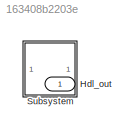
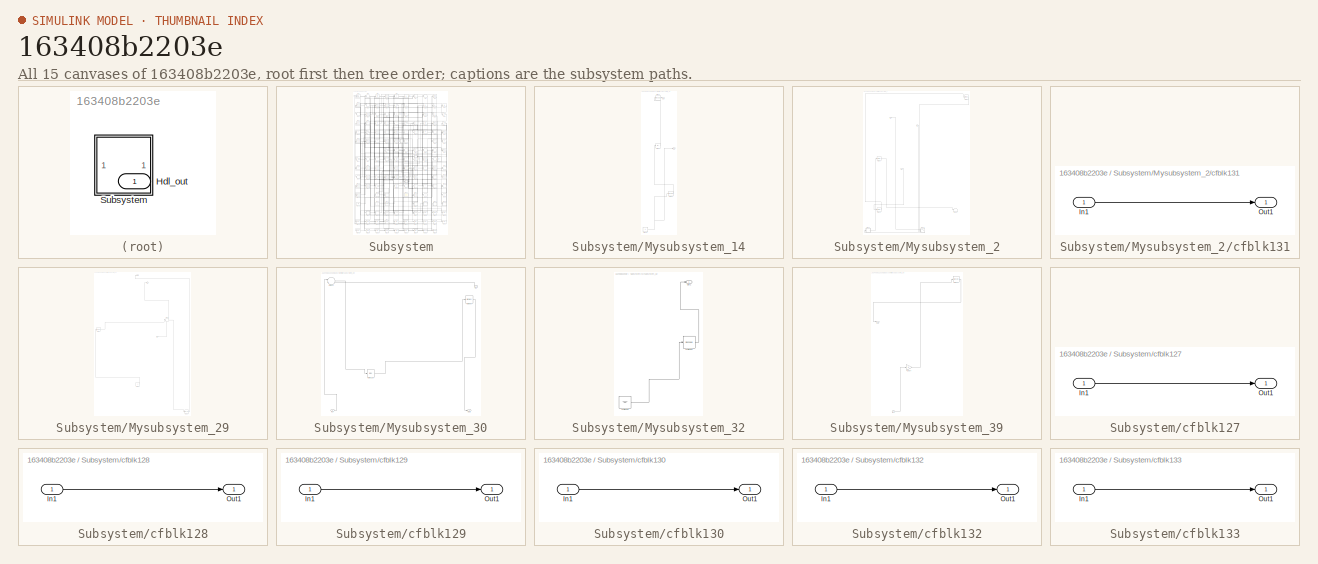
[diagram: thumbnail index - all 15 canvases of the model, root first then tree order]
MODEL slx_163408b2203e
KIND model
CONFIG AbsTol = auto
CONFIG EnableMultiTasking = off
CONFIG FixedStep = auto
CONFIG MaxStep = auto
CONFIG MinStep = auto
CONFIG RelTol = 1e-3
CONFIG SampleTimeConstraint = Unconstrained
CONFIG SolverName = VariableStepAuto
CONFIG StartTime = 0.0
CONFIG StopTime = 10.0
BLOCK [Outport] Hdl_out
  OutDataTypeStr = uint8
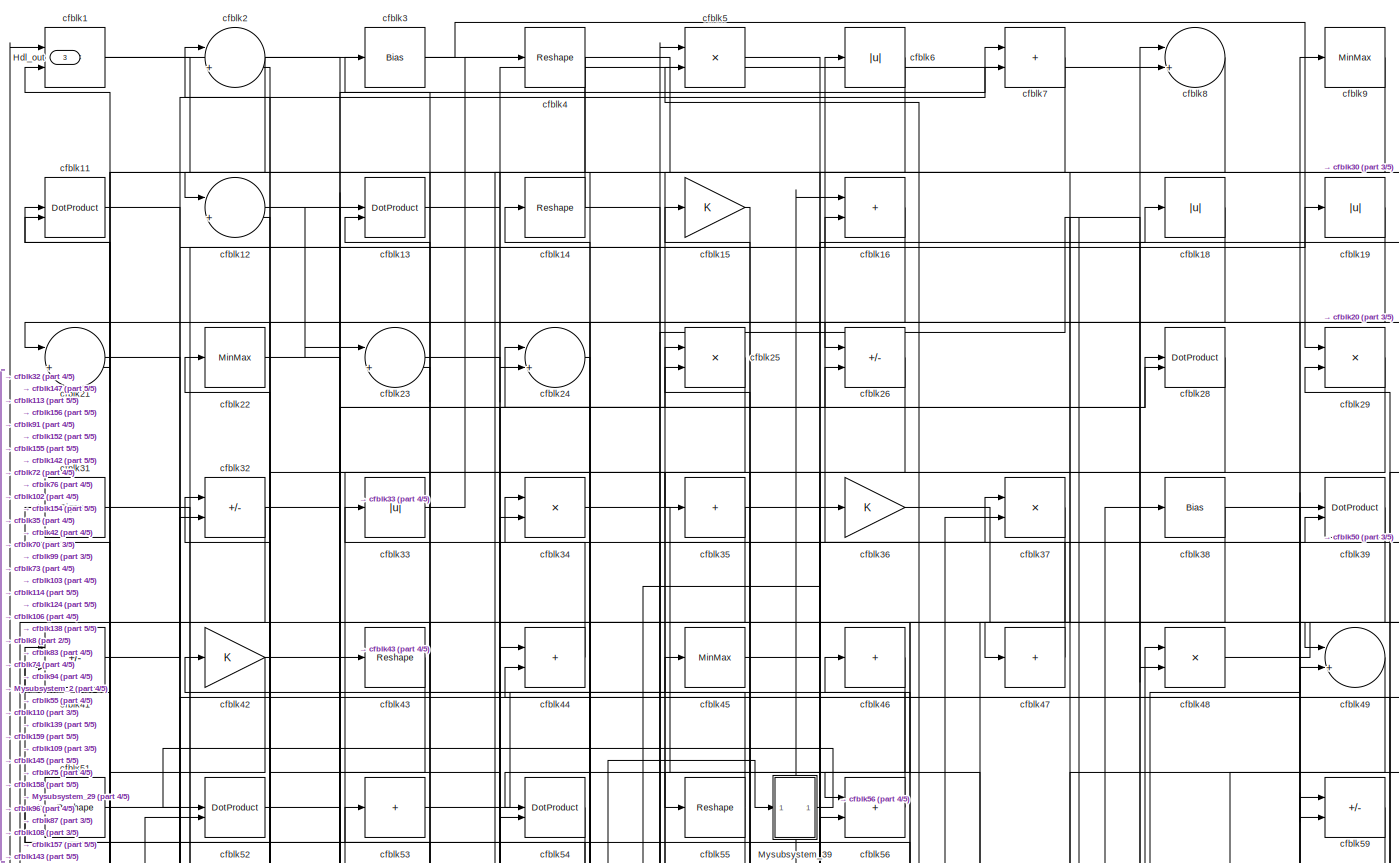
[diagram: Subsystem - part 1/5, full width, top band]
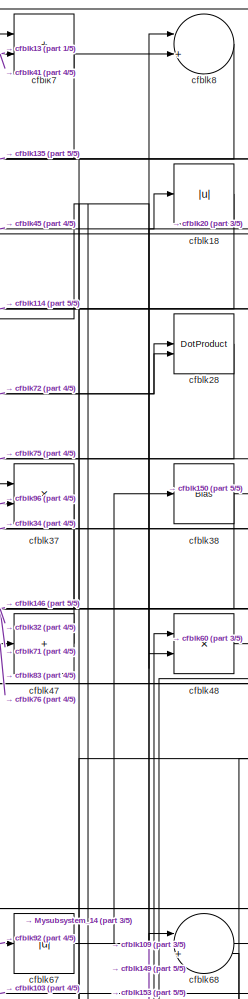
[diagram: Subsystem - part 2/5, top right region]
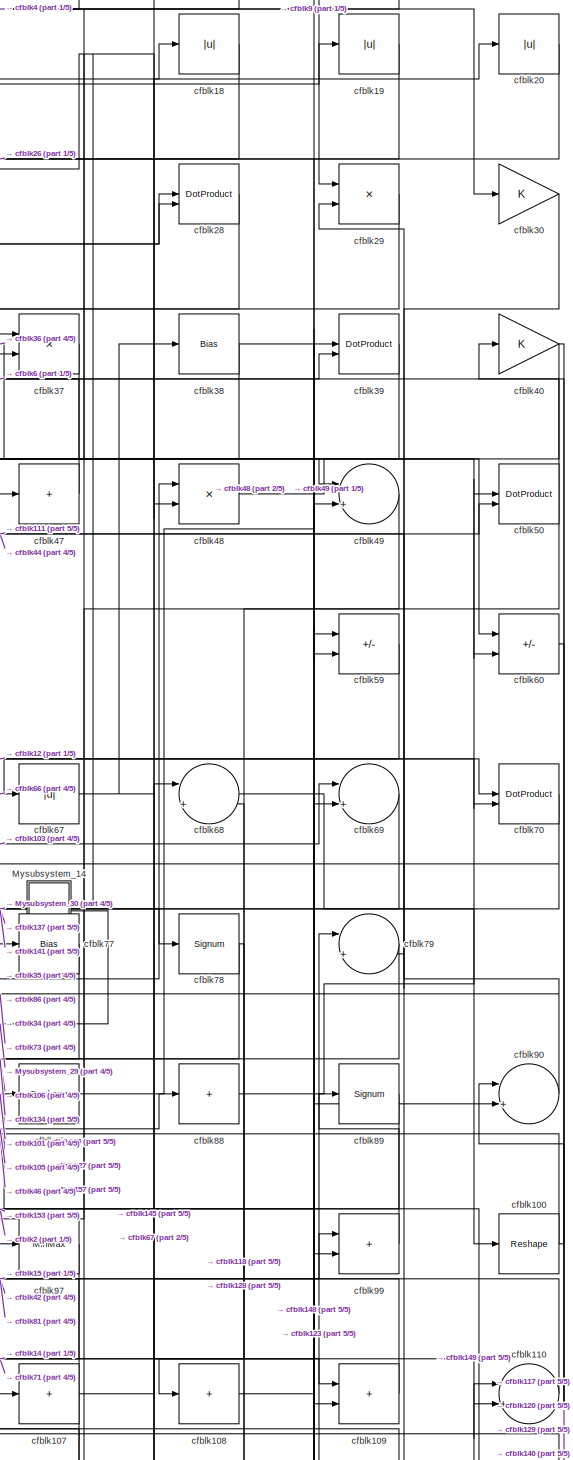
[diagram: Subsystem - part 3/5, middle right region]
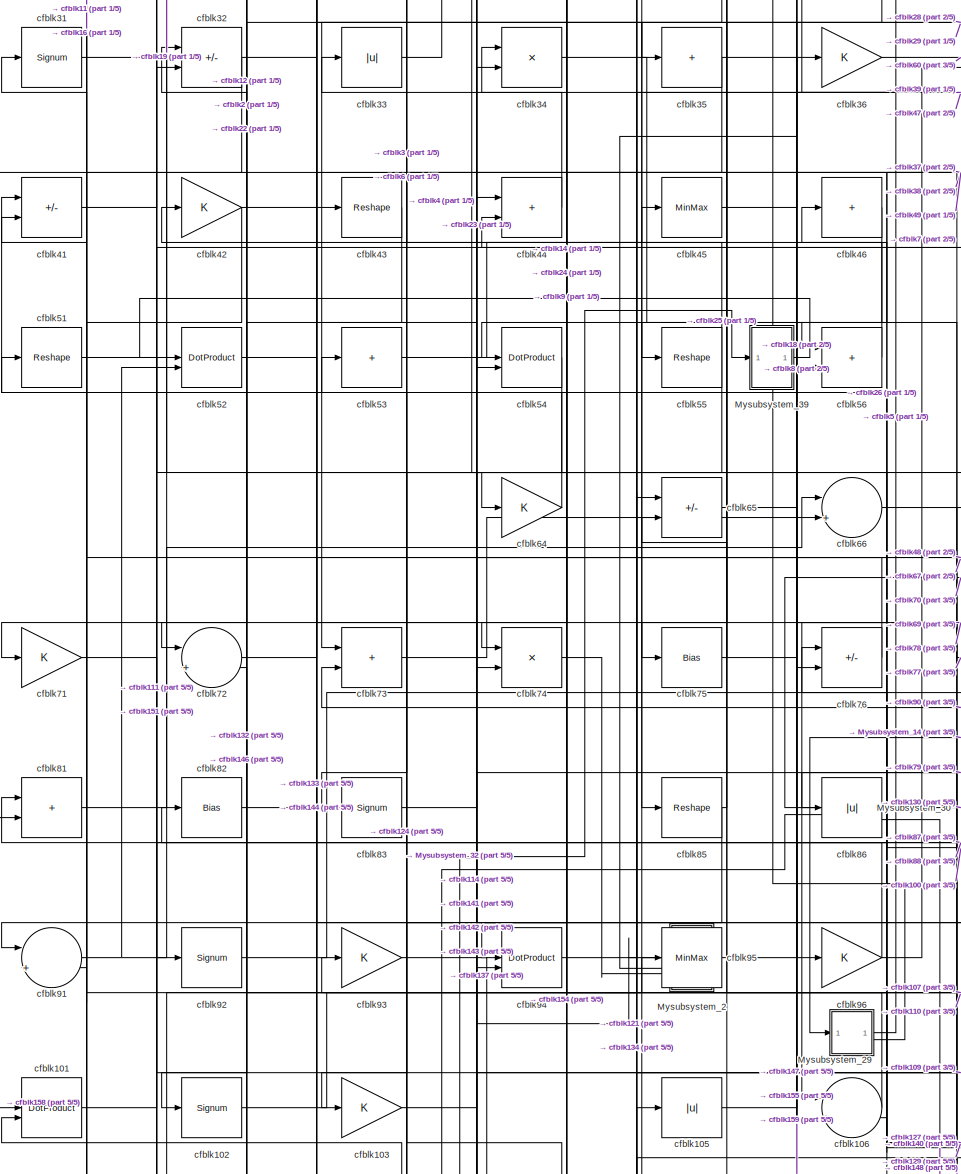
[diagram: Subsystem - part 4/5, middle left region]
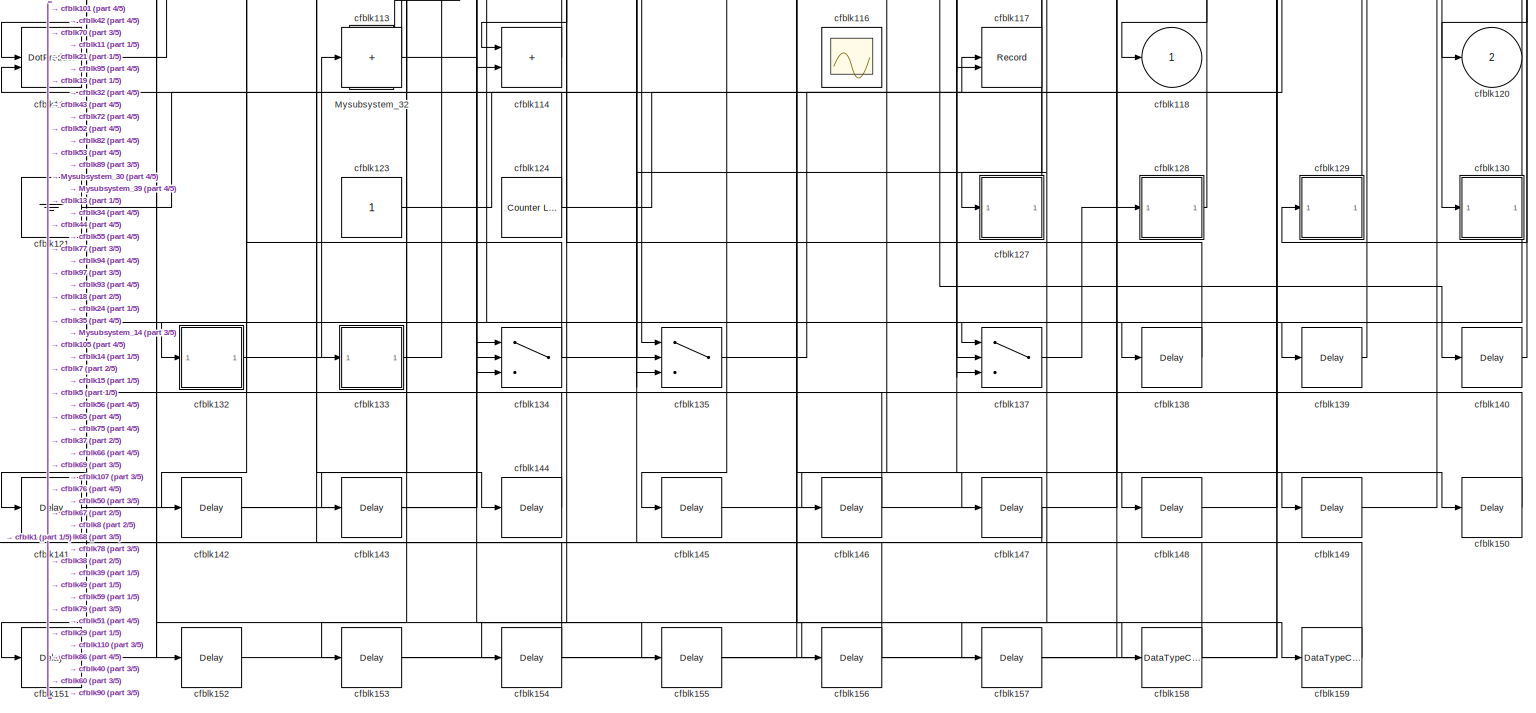
[diagram: Subsystem - part 5/5, full width, bottom band]
BLOCK [SubSystem] Subsystem
BLOCK [Outport] Subsystem/Hdl_out
  OutDataTypeStr = uint8
  Port = 3
BLOCK [SubSystem] Subsystem/Mysubsystem_14
  RTWFcnName = Mysubsystem_14
  RTWFcnNameOpts = User specified
  RTWFileNameOpts = Use function name
  RTWSystemCode = Reusable function
  TreatAsAtomicUnit = on
BLOCK [Outport] Subsystem/Mysubsystem_14/Out1
BLOCK [Outport] Subsystem/Mysubsystem_14/Out2
  Port = 2
BLOCK [Constant] Subsystem/Mysubsystem_14/cfblk126
  SampleTime = -1
BLOCK [Reshape] Subsystem/Mysubsystem_14/cfblk17
BLOCK [Abs] Subsystem/Mysubsystem_14/cfblk57
  SaturateOnIntegerOverflow = off
BLOCK [Reshape] Subsystem/Mysubsystem_14/cfblk98
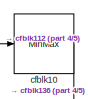
[diagram: Subsystem/Mysubsystem_2 - part 1/5, top right region]
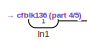
[diagram: Subsystem/Mysubsystem_2 - part 2/5, top left region]
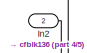
[diagram: Subsystem/Mysubsystem_2 - part 3/5, top center region]
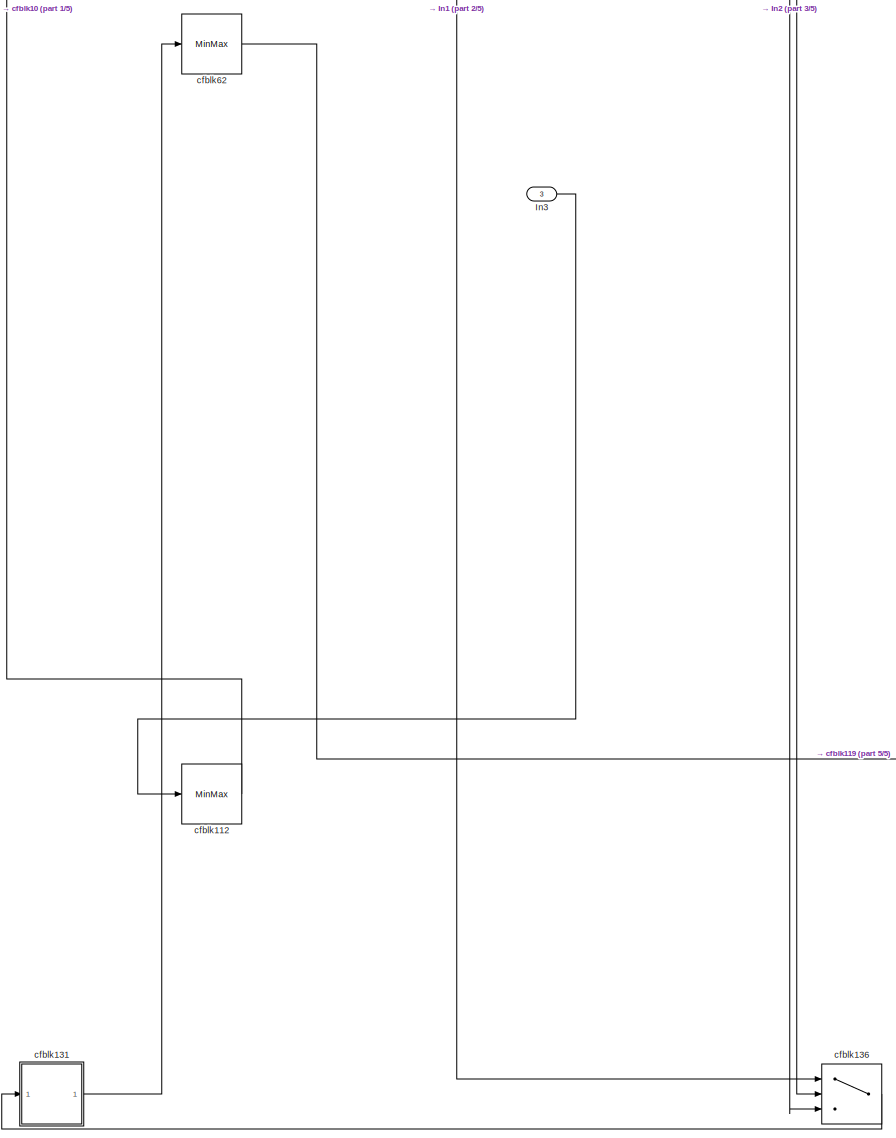
[diagram: Subsystem/Mysubsystem_2 - part 4/5, bottom left region]
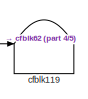
[diagram: Subsystem/Mysubsystem_2 - part 5/5, bottom right region]
BLOCK [SubSystem] Subsystem/Mysubsystem_2
  RTWFcnName = Mysubsystem_2
  RTWFcnNameOpts = User specified
  RTWFileNameOpts = Use function name
  RTWSystemCode = Reusable function
  TreatAsAtomicUnit = on
BLOCK [Inport] Subsystem/Mysubsystem_2/In1
BLOCK [Inport] Subsystem/Mysubsystem_2/In2
  Port = 2
BLOCK [Inport] Subsystem/Mysubsystem_2/In3
  Port = 3
BLOCK [MinMax] Subsystem/Mysubsystem_2/cfblk10
BLOCK [MinMax] Subsystem/Mysubsystem_2/cfblk112
BLOCK [Terminator] Subsystem/Mysubsystem_2/cfblk119
BLOCK [SubSystem] Subsystem/Mysubsystem_2/cfblk131
  LibrarySourceBlock = hdlsllib/Ports &\nSubsystems/Subsystem
BLOCK [Inport] Subsystem/Mysubsystem_2/cfblk131/In1
BLOCK [Outport] Subsystem/Mysubsystem_2/cfblk131/Out1
BLOCK [Switch] Subsystem/Mysubsystem_2/cfblk136
  InputSameDT = off
  SaturateOnIntegerOverflow = off
BLOCK [MinMax] Subsystem/Mysubsystem_2/cfblk62
BLOCK [SubSystem] Subsystem/Mysubsystem_29
  RTWFcnName = Mysubsystem_29
  RTWFcnNameOpts = User specified
  RTWFileNameOpts = Use function name
  RTWSystemCode = Reusable function
  TreatAsAtomicUnit = on
BLOCK [Inport] Subsystem/Mysubsystem_29/In1
BLOCK [Outport] Subsystem/Mysubsystem_29/Out1
BLOCK [Outport] Subsystem/Mysubsystem_29/Out2
  Port = 2
BLOCK [Constant] Subsystem/Mysubsystem_29/cfblk125
  SampleTime = -1
BLOCK [DataTypeConversion] Subsystem/Mysubsystem_29/cfblk160
  OutDataTypeStr = uint8
  RndMeth = Floor
  SaturateOnIntegerOverflow = off
BLOCK [Sum] Subsystem/Mysubsystem_29/cfblk58
  Inputs = |++
BLOCK [Signum] Subsystem/Mysubsystem_29/cfblk61
BLOCK [SubSystem] Subsystem/Mysubsystem_30
  RTWFcnName = Mysubsystem_30
  RTWFcnNameOpts = User specified
  RTWFileNameOpts = Use function name
  RTWSystemCode = Reusable function
  TreatAsAtomicUnit = on
BLOCK [Inport] Subsystem/Mysubsystem_30/In1
BLOCK [Inport] Subsystem/Mysubsystem_30/In2
  Port = 2
BLOCK [Outport] Subsystem/Mysubsystem_30/Out1
BLOCK [Bias] Subsystem/Mysubsystem_30/cfblk115
  Bias = 0.0
  SaturateOnIntegerOverflow = off
BLOCK [Sum] Subsystem/Mysubsystem_30/cfblk63
  Inputs = |++
BLOCK [MinMax] Subsystem/Mysubsystem_30/cfblk80
BLOCK [SubSystem] Subsystem/Mysubsystem_32
  RTWFcnName = Mysubsystem_32
  RTWFcnNameOpts = User specified
  RTWFileNameOpts = Use function name
  RTWSystemCode = Reusable function
  TreatAsAtomicUnit = on
BLOCK [Outport] Subsystem/Mysubsystem_32/Out1
BLOCK [Reshape] Subsystem/Mysubsystem_32/cfblk104
BLOCK [Ground] Subsystem/Mysubsystem_32/cfblk122
BLOCK [SubSystem] Subsystem/Mysubsystem_39
  RTWFcnName = Mysubsystem_39
  RTWFcnNameOpts = User specified
  RTWFileNameOpts = Use function name
  RTWSystemCode = Reusable function
  TreatAsAtomicUnit = on
BLOCK [Inport] Subsystem/Mysubsystem_39/In1
BLOCK [Outport] Subsystem/Mysubsystem_39/Out1
BLOCK [Signum] Subsystem/Mysubsystem_39/cfblk27
BLOCK [Gain] Subsystem/Mysubsystem_39/cfblk84
BLOCK [RelationalOperator] Subsystem/cfblk1
  InputSameDT = off
  Operator = <=
  OutDataTypeStr = boolean
BLOCK [Reshape] Subsystem/cfblk100
BLOCK [DotProduct] Subsystem/cfblk101
  OutDataTypeStr = uint8
BLOCK [Signum] Subsystem/cfblk102
BLOCK [Gain] Subsystem/cfblk103
  OutDataTypeStr = uint8
BLOCK [Abs] Subsystem/cfblk105
  OutDataTypeStr = uint8
  SaturateOnIntegerOverflow = off
BLOCK [Sum] Subsystem/cfblk106
  Inputs = |++
  OutDataTypeStr = uint8
BLOCK [Sum] Subsystem/cfblk107
  IconShape = rectangular
  Inputs = +
  OutDataTypeStr = uint8
BLOCK [Sum] Subsystem/cfblk108
  IconShape = rectangular
  Inputs = +
  OutDataTypeStr = uint8
BLOCK [Sum] Subsystem/cfblk109
  IconShape = rectangular
  OutDataTypeStr = uint8
BLOCK [DotProduct] Subsystem/cfblk11
  OutDataTypeStr = uint8
BLOCK [Sum] Subsystem/cfblk110
  Inputs = |++
  OutDataTypeStr = uint8
BLOCK [DotProduct] Subsystem/cfblk111
  OutDataTypeStr = uint8
BLOCK [Sum] Subsystem/cfblk113
  IconShape = rectangular
  Inputs = +
  OutDataTypeStr = uint8
BLOCK [Sum] Subsystem/cfblk114
  IconShape = rectangular
  OutDataTypeStr = uint8
BLOCK [Scope] Subsystem/cfblk116
  Floating = on
  NumInputPorts = 1
  ScopeSpecificationString = Simulink.scopes.TimeScopeBlockCfg('CurrentConfiguration', extmgr.ConfigurationSet(extmgr.Configuration('Core','General UI',true,'FigureColor',[0.156862745098039 0.156862745098039 0.156862745098039]),extmgr.Configuration('Core','Source UI',true),extmgr.Configuration('Sources','WiredSimulink',true,'DataLoggingSaveFormat','StructureWithTime','DataLoggingLimitDataPoints',true,'DataLoggingDecimation','...<+2674ch>
BLOCK [Record] Subsystem/cfblk117
  CompatibilityTag = XY
  FileSettingsInternal = {"entries":[{"content":{"excelSettings":{"content":{},"type":"Streamout.ExcelSettings"}},"type":"Streamout.FileSettingStorage","uuid":""}],"packageUris":["http:\/\/schema.mathworks.com\/mf0\/streamout_blocks\/R2020a"],"version":"1.0"}
  Layout = [1 1]
  SignalsInternal = {"entries":[{"content":{"signals":[{"content":{"blockPath":[],"dimensions":[1],"domain":"","lineColor":"#a2142f","plots":[1],"port":1,"signalID":53658,"signalName":"cfblk135"},"type":"RecordBlkView.Signal","uuid":""},{"content":{"blockPath":[],"dimensions":[1],"domain":"","lineColor":"#139fff","plots":[1],"port":2,"signalID":53661,"signalName":"cfblk40"},"type":"RecordBlkView.Signal","uuid":""}]},...<+143ch>
  VisualizationBindings = {"xyplotplugin":{"info":[{"series":[{"bindingParametersList":[{"parameter":"X-Axis","signalID":53658,"signalName":"cfblk135"},{"parameter":"Y-Axis","signalID":53661,"signalName":"cfblk40"}],"seriesID":5701}],"subplotID":1}]}}
  st = -1
BLOCK [Outport] Subsystem/cfblk118
  OutDataTypeStr = uint8
  VectorParamsAs1DForOutWhenUnconnected = off
BLOCK [Sum] Subsystem/cfblk12
  Inputs = |++
  OutDataTypeStr = uint8
BLOCK [Outport] Subsystem/cfblk120
  OutDataTypeStr = uint8
  Port = 2
  VectorParamsAs1DForOutWhenUnconnected = off
BLOCK [Ground] Subsystem/cfblk121
BLOCK [Constant] Subsystem/cfblk123
  OutDataTypeStr = uint8
  SampleTime = -1
BLOCK [Reference] Subsystem/cfblk124  REF=hdlsllib/Sources/Counter
Limited
  SourceBlock = hdlsllib/Sources/Counter\nLimited
  SourceType = Counter Limited
BLOCK [SubSystem] Subsystem/cfblk127
  LibrarySourceBlock = hdlsllib/Ports &\nSubsystems/Subsystem
BLOCK [Inport] Subsystem/cfblk127/In1
BLOCK [Outport] Subsystem/cfblk127/Out1
BLOCK [SubSystem] Subsystem/cfblk128
  LibrarySourceBlock = hdlsllib/Ports &\nSubsystems/Subsystem
BLOCK [Inport] Subsystem/cfblk128/In1
BLOCK [Outport] Subsystem/cfblk128/Out1
BLOCK [SubSystem] Subsystem/cfblk129
  LibrarySourceBlock = hdlsllib/Ports &\nSubsystems/Subsystem
BLOCK [Inport] Subsystem/cfblk129/In1
BLOCK [Outport] Subsystem/cfblk129/Out1
BLOCK [DotProduct] Subsystem/cfblk13
  OutDataTypeStr = uint8
BLOCK [SubSystem] Subsystem/cfblk130
  LibrarySourceBlock = hdlsllib/Ports &\nSubsystems/Subsystem
BLOCK [Inport] Subsystem/cfblk130/In1
BLOCK [Outport] Subsystem/cfblk130/Out1
BLOCK [SubSystem] Subsystem/cfblk132
  LibrarySourceBlock = hdlsllib/Ports &\nSubsystems/Subsystem
BLOCK [Inport] Subsystem/cfblk132/In1
BLOCK [Outport] Subsystem/cfblk132/Out1
BLOCK [SubSystem] Subsystem/cfblk133
  LibrarySourceBlock = hdlsllib/Ports &\nSubsystems/Subsystem
BLOCK [Inport] Subsystem/cfblk133/In1
BLOCK [Outport] Subsystem/cfblk133/Out1
BLOCK [Switch] Subsystem/cfblk134
  InputSameDT = off
  OutDataTypeStr = uint8
  SaturateOnIntegerOverflow = off
BLOCK [Switch] Subsystem/cfblk135
  InputSameDT = off
  OutDataTypeStr = uint8
  SaturateOnIntegerOverflow = off
BLOCK [Switch] Subsystem/cfblk137
  InputSameDT = off
  OutDataTypeStr = uint8
  SaturateOnIntegerOverflow = off
BLOCK [Delay] Subsystem/cfblk138
  InputPortMap = u0
  SampleTime = 1
BLOCK [Delay] Subsystem/cfblk139
  InputPortMap = u0
  SampleTime = 1
BLOCK [Reshape] Subsystem/cfblk14
BLOCK [Delay] Subsystem/cfblk140
  InputPortMap = u0
  SampleTime = 1
BLOCK [Delay] Subsystem/cfblk141
  InputPortMap = u0
  SampleTime = 1
BLOCK [Delay] Subsystem/cfblk142
  InputPortMap = u0
  SampleTime = 1
BLOCK [Delay] Subsystem/cfblk143
  InputPortMap = u0
  SampleTime = 1
BLOCK [Delay] Subsystem/cfblk144
  InputPortMap = u0
  SampleTime = 1
BLOCK [Delay] Subsystem/cfblk145
  InputPortMap = u0
  SampleTime = 1
BLOCK [Delay] Subsystem/cfblk146
  InputPortMap = u0
  SampleTime = 1
BLOCK [Delay] Subsystem/cfblk147
  InputPortMap = u0
  SampleTime = 1
BLOCK [Delay] Subsystem/cfblk148
  InputPortMap = u0
  SampleTime = 1
BLOCK [Delay] Subsystem/cfblk149
  InputPortMap = u0
  SampleTime = 1
BLOCK [Gain] Subsystem/cfblk15
  OutDataTypeStr = uint8
BLOCK [Delay] Subsystem/cfblk150
  InputPortMap = u0
  SampleTime = 1
BLOCK [Delay] Subsystem/cfblk151
  InputPortMap = u0
  SampleTime = 1
BLOCK [Delay] Subsystem/cfblk152
  InputPortMap = u0
  SampleTime = 1
BLOCK [Delay] Subsystem/cfblk153
  InputPortMap = u0
  SampleTime = 1
BLOCK [Delay] Subsystem/cfblk154
  InputPortMap = u0
  SampleTime = 1
BLOCK [Delay] Subsystem/cfblk155
  InputPortMap = u0
  SampleTime = 1
BLOCK [Delay] Subsystem/cfblk156
  InputPortMap = u0
  SampleTime = 1
BLOCK [Delay] Subsystem/cfblk157
  InputPortMap = u0
  SampleTime = 1
BLOCK [DataTypeConversion] Subsystem/cfblk158
  OutDataTypeStr = uint8
  RndMeth = Floor
  SaturateOnIntegerOverflow = off
BLOCK [DataTypeConversion] Subsystem/cfblk159
  OutDataTypeStr = uint8
  RndMeth = Floor
  SaturateOnIntegerOverflow = off
BLOCK [Sum] Subsystem/cfblk16
  IconShape = rectangular
  OutDataTypeStr = uint8
BLOCK [Abs] Subsystem/cfblk18
  OutDataTypeStr = uint8
  SaturateOnIntegerOverflow = off
BLOCK [Abs] Subsystem/cfblk19
  OutDataTypeStr = uint8
  SaturateOnIntegerOverflow = off
BLOCK [Sum] Subsystem/cfblk2
  Inputs = |++
  OutDataTypeStr = uint8
BLOCK [Abs] Subsystem/cfblk20
  OutDataTypeStr = uint8
  SaturateOnIntegerOverflow = off
BLOCK [Sum] Subsystem/cfblk21
  Inputs = |++
  OutDataTypeStr = uint8
BLOCK [MinMax] Subsystem/cfblk22
  OutDataTypeStr = uint8
BLOCK [Sum] Subsystem/cfblk23
  Inputs = |++
  OutDataTypeStr = uint8
BLOCK [Sum] Subsystem/cfblk24
  Inputs = |++
  OutDataTypeStr = uint8
BLOCK [Product] Subsystem/cfblk25
  Inputs = */
  OutDataTypeStr = uint8
  RndMeth = Zero
  SaturateOnIntegerOverflow = on
BLOCK [Sum] Subsystem/cfblk26
  IconShape = rectangular
  Inputs = +-
  OutDataTypeStr = uint8
BLOCK [DotProduct] Subsystem/cfblk28
  OutDataTypeStr = uint8
BLOCK [Product] Subsystem/cfblk29
  Inputs = */
  OutDataTypeStr = uint8
  RndMeth = Zero
  SaturateOnIntegerOverflow = on
BLOCK [Bias] Subsystem/cfblk3
  Bias = 0.0
  SaturateOnIntegerOverflow = off
BLOCK [Gain] Subsystem/cfblk30
  OutDataTypeStr = uint8
BLOCK [Signum] Subsystem/cfblk31
BLOCK [Sum] Subsystem/cfblk32
  IconShape = rectangular
  Inputs = +-
  OutDataTypeStr = uint8
BLOCK [Abs] Subsystem/cfblk33
  OutDataTypeStr = uint8
  SaturateOnIntegerOverflow = off
BLOCK [Product] Subsystem/cfblk34
  Inputs = */
  OutDataTypeStr = uint8
  RndMeth = Zero
  SaturateOnIntegerOverflow = on
BLOCK [Sum] Subsystem/cfblk35
  IconShape = rectangular
  Inputs = +
  OutDataTypeStr = uint8
BLOCK [Gain] Subsystem/cfblk36
  OutDataTypeStr = uint8
BLOCK [Product] Subsystem/cfblk37
  Inputs = */
  OutDataTypeStr = uint8
  RndMeth = Zero
  SaturateOnIntegerOverflow = on
BLOCK [Bias] Subsystem/cfblk38
  Bias = 0.0
  SaturateOnIntegerOverflow = off
BLOCK [DotProduct] Subsystem/cfblk39
  OutDataTypeStr = uint8
BLOCK [Reshape] Subsystem/cfblk4
BLOCK [Gain] Subsystem/cfblk40
  OutDataTypeStr = uint8
BLOCK [Sum] Subsystem/cfblk41
  IconShape = rectangular
  Inputs = +-
  OutDataTypeStr = uint8
BLOCK [Gain] Subsystem/cfblk42
  OutDataTypeStr = uint8
BLOCK [Reshape] Subsystem/cfblk43
BLOCK [Sum] Subsystem/cfblk44
  IconShape = rectangular
  OutDataTypeStr = uint8
BLOCK [MinMax] Subsystem/cfblk45
  OutDataTypeStr = uint8
BLOCK [Sum] Subsystem/cfblk46
  IconShape = rectangular
  Inputs = +
  OutDataTypeStr = uint8
BLOCK [Sum] Subsystem/cfblk47
  IconShape = rectangular
  Inputs = +
  OutDataTypeStr = uint8
BLOCK [Product] Subsystem/cfblk48
  Inputs = */
  OutDataTypeStr = uint8
  RndMeth = Zero
  SaturateOnIntegerOverflow = on
BLOCK [Sum] Subsystem/cfblk49
  Inputs = |++
  OutDataTypeStr = uint8
BLOCK [Product] Subsystem/cfblk5
  Inputs = */
  OutDataTypeStr = uint8
  RndMeth = Zero
  SaturateOnIntegerOverflow = on
BLOCK [DotProduct] Subsystem/cfblk50
  OutDataTypeStr = uint8
BLOCK [Reshape] Subsystem/cfblk51
BLOCK [DotProduct] Subsystem/cfblk52
  OutDataTypeStr = uint8
BLOCK [Sum] Subsystem/cfblk53
  IconShape = rectangular
  Inputs = +
  OutDataTypeStr = uint8
BLOCK [DotProduct] Subsystem/cfblk54
  OutDataTypeStr = uint8
BLOCK [Reshape] Subsystem/cfblk55
BLOCK [Sum] Subsystem/cfblk56
  IconShape = rectangular
  OutDataTypeStr = uint8
BLOCK [Sum] Subsystem/cfblk59
  IconShape = rectangular
  Inputs = +-
  OutDataTypeStr = uint8
BLOCK [Abs] Subsystem/cfblk6
  OutDataTypeStr = uint8
  SaturateOnIntegerOverflow = off
BLOCK [Sum] Subsystem/cfblk60
  IconShape = rectangular
  Inputs = +-
  OutDataTypeStr = uint8
BLOCK [Gain] Subsystem/cfblk64
  OutDataTypeStr = uint8
BLOCK [Sum] Subsystem/cfblk65
  IconShape = rectangular
  Inputs = +-
  OutDataTypeStr = uint8
BLOCK [Sum] Subsystem/cfblk66
  Inputs = |++
  OutDataTypeStr = uint8
BLOCK [Abs] Subsystem/cfblk67
  OutDataTypeStr = uint8
  SaturateOnIntegerOverflow = off
BLOCK [Sum] Subsystem/cfblk68
  Inputs = |++
  OutDataTypeStr = uint8
BLOCK [Sum] Subsystem/cfblk69
  Inputs = |++
  OutDataTypeStr = uint8
BLOCK [Sum] Subsystem/cfblk7
  IconShape = rectangular
  OutDataTypeStr = uint8
BLOCK [DotProduct] Subsystem/cfblk70
  OutDataTypeStr = uint8
BLOCK [Gain] Subsystem/cfblk71
  OutDataTypeStr = uint8
BLOCK [Sum] Subsystem/cfblk72
  Inputs = |++
  OutDataTypeStr = uint8
BLOCK [Sum] Subsystem/cfblk73
  IconShape = rectangular
  OutDataTypeStr = uint8
BLOCK [Product] Subsystem/cfblk74
  Inputs = */
  OutDataTypeStr = uint8
  RndMeth = Zero
  SaturateOnIntegerOverflow = on
BLOCK [Bias] Subsystem/cfblk75
  Bias = 0.0
  SaturateOnIntegerOverflow = off
BLOCK [Sum] Subsystem/cfblk76
  IconShape = rectangular
  Inputs = +-
  OutDataTypeStr = uint8
BLOCK [Bias] Subsystem/cfblk77
  Bias = 0.0
  SaturateOnIntegerOverflow = off
BLOCK [Signum] Subsystem/cfblk78
BLOCK [Sum] Subsystem/cfblk79
  Inputs = |++
  OutDataTypeStr = uint8
BLOCK [Sum] Subsystem/cfblk8
  Inputs = |++
  OutDataTypeStr = uint8
BLOCK [Sum] Subsystem/cfblk81
  IconShape = rectangular
  OutDataTypeStr = uint8
BLOCK [Bias] Subsystem/cfblk82
  Bias = 0.0
  SaturateOnIntegerOverflow = off
BLOCK [Signum] Subsystem/cfblk83
BLOCK [Reshape] Subsystem/cfblk85
BLOCK [Abs] Subsystem/cfblk86
  OutDataTypeStr = uint8
  SaturateOnIntegerOverflow = off
BLOCK [Reshape] Subsystem/cfblk87
BLOCK [Sum] Subsystem/cfblk88
  IconShape = rectangular
  Inputs = +
  OutDataTypeStr = uint8
BLOCK [Signum] Subsystem/cfblk89
BLOCK [MinMax] Subsystem/cfblk9
  OutDataTypeStr = uint8
BLOCK [Sum] Subsystem/cfblk90
  Inputs = |++
  OutDataTypeStr = uint8
BLOCK [Sum] Subsystem/cfblk91
  Inputs = |++
  OutDataTypeStr = uint8
BLOCK [Signum] Subsystem/cfblk92
BLOCK [Gain] Subsystem/cfblk93
  OutDataTypeStr = uint8
BLOCK [DotProduct] Subsystem/cfblk94
  OutDataTypeStr = uint8
BLOCK [MinMax] Subsystem/cfblk95
  OutDataTypeStr = uint8
BLOCK [Gain] Subsystem/cfblk96
  OutDataTypeStr = uint8
BLOCK [MinMax] Subsystem/cfblk97
  OutDataTypeStr = uint8
BLOCK [Sum] Subsystem/cfblk99
  IconShape = rectangular
  OutDataTypeStr = uint8
NET Subsystem/Mysubsystem_14/cfblk126:1 -> Subsystem/Mysubsystem_14/Out2:1, Subsystem/Mysubsystem_14/cfblk98:1
LINE Subsystem/Mysubsystem_14/cfblk17:1 -> Subsystem/Mysubsystem_14/Out1:1
LINE Subsystem/Mysubsystem_14/cfblk57:1 -> Subsystem/Mysubsystem_14/cfblk17:1
LINE Subsystem/Mysubsystem_14/cfblk98:1 -> Subsystem/Mysubsystem_14/cfblk57:1
NET Subsystem/Mysubsystem_14:1 -> Subsystem/cfblk135:3, Subsystem/cfblk48:2, Subsystem/cfblk97:1
LINE Subsystem/Mysubsystem_14:2 -> Subsystem/Mysubsystem_29:1
LINE Subsystem/Mysubsystem_2/In1:1 -> Subsystem/Mysubsystem_2/cfblk136:1
LINE Subsystem/Mysubsystem_2/In2:1 -> Subsystem/Mysubsystem_2/cfblk136:3
LINE Subsystem/Mysubsystem_2/In3:1 -> Subsystem/Mysubsystem_2/cfblk112:1
LINE Subsystem/Mysubsystem_2/cfblk10:1 -> Subsystem/Mysubsystem_2/cfblk136:2
LINE Subsystem/Mysubsystem_2/cfblk112:1 -> Subsystem/Mysubsystem_2/cfblk10:1
LINE Subsystem/Mysubsystem_2/cfblk131/In1:1 -> Subsystem/Mysubsystem_2/cfblk131/Out1:1
LINE Subsystem/Mysubsystem_2/cfblk131:1 -> Subsystem/Mysubsystem_2/cfblk62:1
LINE Subsystem/Mysubsystem_2/cfblk136:1 -> Subsystem/Mysubsystem_2/cfblk131:1
LINE Subsystem/Mysubsystem_2/cfblk62:1 -> Subsystem/Mysubsystem_2/cfblk119:1
LINE Subsystem/Mysubsystem_29/In1:1 -> Subsystem/Mysubsystem_29/cfblk58:2
LINE Subsystem/Mysubsystem_29/cfblk125:1 -> Subsystem/Mysubsystem_29/cfblk61:1
LINE Subsystem/Mysubsystem_29/cfblk160:1 -> Subsystem/Mysubsystem_29/Out1:1
NET Subsystem/Mysubsystem_29/cfblk58:1 -> Subsystem/Mysubsystem_29/Out2:1, Subsystem/Mysubsystem_29/cfblk160:1
LINE Subsystem/Mysubsystem_29/cfblk61:1 -> Subsystem/Mysubsystem_29/cfblk58:1
LINE Subsystem/Mysubsystem_29:1 -> Subsystem/cfblk5:2
LINE Subsystem/Mysubsystem_29:2 -> Subsystem/cfblk16:1
LINE Subsystem/Mysubsystem_30/In1:1 -> Subsystem/Mysubsystem_30/cfblk63:2
LINE Subsystem/Mysubsystem_30/In2:1 -> Subsystem/Mysubsystem_30/cfblk63:1
LINE Subsystem/Mysubsystem_30/cfblk115:1 -> Subsystem/Mysubsystem_30/cfblk80:1
LINE Subsystem/Mysubsystem_30/cfblk63:1 -> Subsystem/Mysubsystem_30/cfblk115:1
LINE Subsystem/Mysubsystem_30/cfblk80:1 -> Subsystem/Mysubsystem_30/Out1:1
LINE Subsystem/Mysubsystem_30:1 -> Subsystem/cfblk140:1
LINE Subsystem/Mysubsystem_32/cfblk104:1 -> Subsystem/Mysubsystem_32/Out1:1
LINE Subsystem/Mysubsystem_32/cfblk122:1 -> Subsystem/Mysubsystem_32/cfblk104:1
LINE Subsystem/Mysubsystem_32:1 -> Subsystem/Mysubsystem_39:1
LINE Subsystem/Mysubsystem_39/In1:1 -> Subsystem/Mysubsystem_39/cfblk84:1
LINE Subsystem/Mysubsystem_39/cfblk27:1 -> Subsystem/Mysubsystem_39/Out1:1
LINE Subsystem/Mysubsystem_39/cfblk84:1 -> Subsystem/Mysubsystem_39/cfblk27:1
LINE Subsystem/Mysubsystem_39:1 -> Subsystem/cfblk52:1
NET Subsystem/cfblk100:1 -> Subsystem/cfblk40:1, Subsystem/cfblk46:1
LINE Subsystem/cfblk101:1 -> Subsystem/cfblk87:1
NET Subsystem/cfblk102:1 -> Subsystem/cfblk26:2, Subsystem/cfblk65:1
NET Subsystem/cfblk103:1 -> Subsystem/cfblk28:2, Subsystem/cfblk69:1
LINE Subsystem/cfblk105:1 -> Subsystem/cfblk88:1
LINE Subsystem/cfblk106:1 -> Subsystem/cfblk14:1
NET Subsystem/cfblk107:1 -> Subsystem/cfblk135:2, Subsystem/cfblk81:1, Subsystem/cfblk99:1
LINE Subsystem/cfblk108:1 -> Subsystem/cfblk90:2
LINE Subsystem/cfblk109:1 -> Subsystem/cfblk15:1
LINE Subsystem/cfblk110:1 -> Subsystem/cfblk42:1
NET Subsystem/cfblk111:1 -> Subsystem/cfblk50:2, Subsystem/cfblk95:1
NET Subsystem/cfblk113:1 -> Subsystem/cfblk11:2, Subsystem/cfblk156:1
LINE Subsystem/cfblk114:1 -> Subsystem/cfblk13:2
NET Subsystem/cfblk11:1 -> Subsystem/cfblk155:1, Subsystem/cfblk16:2
LINE Subsystem/cfblk121:1 -> Subsystem/cfblk105:1
LINE Subsystem/cfblk123:1 -> Subsystem/cfblk79:1
NET Subsystem/cfblk124:1 -> Subsystem/cfblk101:2, Subsystem/cfblk53:1, Subsystem/cfblk59:1
LINE Subsystem/cfblk127/In1:1 -> Subsystem/cfblk127/Out1:1
NET Subsystem/cfblk127:1 -> Subsystem/cfblk76:1, Subsystem/cfblk82:1
LINE Subsystem/cfblk128/In1:1 -> Subsystem/cfblk128/Out1:1
LINE Subsystem/cfblk128:1 -> Subsystem/cfblk68:2
LINE Subsystem/cfblk129/In1:1 -> Subsystem/cfblk129/Out1:1
LINE Subsystem/cfblk129:1 -> Subsystem/cfblk51:1
NET Subsystem/cfblk12:1 -> Subsystem/cfblk23:1, Subsystem/cfblk70:2
LINE Subsystem/cfblk130/In1:1 -> Subsystem/cfblk130/Out1:1
NET Subsystem/cfblk130:1 -> Subsystem/cfblk151:1, Subsystem/cfblk93:1
LINE Subsystem/cfblk132/In1:1 -> Subsystem/cfblk132/Out1:1
LINE Subsystem/cfblk132:1 -> Subsystem/cfblk113:1
LINE Subsystem/cfblk133/In1:1 -> Subsystem/cfblk133/Out1:1
LINE Subsystem/cfblk133:1 -> Subsystem/Mysubsystem_30:2
NET Subsystem/cfblk134:1 -> Subsystem/cfblk107:1, Subsystem/cfblk32:1
LINE Subsystem/cfblk135:1 -> Subsystem/cfblk117:1
LINE Subsystem/cfblk137:1 -> Subsystem/cfblk128:1
LINE Subsystem/cfblk138:1 -> Subsystem/cfblk24:1
LINE Subsystem/cfblk139:1 -> Subsystem/cfblk29:2
NET Subsystem/cfblk13:1 -> Subsystem/cfblk138:1, Subsystem/cfblk8:2
LINE Subsystem/cfblk140:1 -> Subsystem/cfblk90:1
LINE Subsystem/cfblk141:1 -> Subsystem/cfblk94:2
LINE Subsystem/cfblk142:1 -> Subsystem/cfblk34:2
LINE Subsystem/cfblk143:1 -> Subsystem/cfblk44:1
LINE Subsystem/cfblk144:1 -> Subsystem/cfblk134:1
LINE Subsystem/cfblk145:1 -> Subsystem/cfblk68:1
LINE Subsystem/cfblk146:1 -> Subsystem/cfblk72:2
LINE Subsystem/cfblk147:1 -> Subsystem/cfblk1:1
LINE Subsystem/cfblk148:1 -> Subsystem/cfblk69:2
LINE Subsystem/cfblk149:1 -> Subsystem/cfblk110:1
NET Subsystem/cfblk14:1 -> Subsystem/Hdl_out:1, Subsystem/cfblk110:2, Subsystem/cfblk139:1
LINE Subsystem/cfblk150:1 -> Subsystem/cfblk111:2
LINE Subsystem/cfblk151:1 -> Subsystem/cfblk32:2
LINE Subsystem/cfblk152:1 -> Subsystem/cfblk39:1
LINE Subsystem/cfblk153:1 -> Subsystem/cfblk8:1
LINE Subsystem/cfblk154:1 -> Subsystem/cfblk13:1
LINE Subsystem/cfblk155:1 -> Subsystem/cfblk56:2
LINE Subsystem/cfblk156:1 -> Subsystem/cfblk1:2
LINE Subsystem/cfblk157:1 -> Subsystem/cfblk49:2
LINE Subsystem/cfblk158:1 -> Subsystem/cfblk101:1
LINE Subsystem/cfblk159:1 -> Subsystem/cfblk5:1
LINE Subsystem/cfblk15:1 -> Subsystem/cfblk145:1
LINE Subsystem/cfblk16:1 -> Subsystem/cfblk91:1
LINE Subsystem/cfblk18:1 -> Subsystem/cfblk114:1
NET Subsystem/cfblk19:1 -> Subsystem/cfblk142:1, Subsystem/cfblk59:2
LINE Subsystem/cfblk1:1 -> Subsystem/cfblk24:2
LINE Subsystem/cfblk20:1 -> Subsystem/cfblk26:1
LINE Subsystem/cfblk21:1 -> Subsystem/cfblk152:1
LINE Subsystem/cfblk22:1 -> Subsystem/cfblk43:1
LINE Subsystem/cfblk23:1 -> Subsystem/Mysubsystem_2:1
LINE Subsystem/cfblk24:1 -> Subsystem/cfblk94:1
LINE Subsystem/cfblk25:1 -> Subsystem/cfblk73:1
LINE Subsystem/cfblk26:1 -> Subsystem/cfblk72:1
LINE Subsystem/cfblk28:1 -> Subsystem/cfblk75:1
NET Subsystem/cfblk29:1 -> Subsystem/Mysubsystem_2:2, Subsystem/cfblk55:1
NET Subsystem/cfblk2:1 -> Subsystem/cfblk21:1, Subsystem/cfblk35:1, Subsystem/cfblk99:2
LINE Subsystem/cfblk30:1 -> Subsystem/cfblk79:2
NET Subsystem/cfblk31:1 -> Subsystem/cfblk64:1, Subsystem/cfblk96:1
NET Subsystem/cfblk32:1 -> Subsystem/cfblk49:1, Subsystem/cfblk54:2, Subsystem/cfblk7:1, Subsystem/cfblk81:2
LINE Subsystem/cfblk33:1 -> Subsystem/cfblk4:1
LINE Subsystem/cfblk34:1 -> Subsystem/cfblk77:1
NET Subsystem/cfblk35:1 -> Subsystem/cfblk154:1, Subsystem/cfblk78:1
LINE Subsystem/cfblk36:1 -> Subsystem/cfblk60:2
NET Subsystem/cfblk37:1 -> Subsystem/cfblk146:1, Subsystem/cfblk71:1
NET Subsystem/cfblk38:1 -> Subsystem/cfblk150:1, Subsystem/cfblk83:1
LINE Subsystem/cfblk39:1 -> Subsystem/cfblk56:1
LINE Subsystem/cfblk3:1 -> Subsystem/cfblk29:1
NET Subsystem/cfblk40:1 -> Subsystem/cfblk117:2, Subsystem/cfblk129:1
LINE Subsystem/cfblk41:1 -> Subsystem/cfblk7:2
NET Subsystem/cfblk42:1 -> Subsystem/cfblk111:1, Subsystem/cfblk12:2, Subsystem/cfblk74:2
LINE Subsystem/cfblk43:1 -> Subsystem/cfblk132:1
LINE Subsystem/cfblk44:1 -> Subsystem/cfblk33:1
LINE Subsystem/cfblk45:1 -> Subsystem/cfblk18:1
LINE Subsystem/cfblk46:1 -> Subsystem/cfblk85:1
LINE Subsystem/cfblk47:1 -> Subsystem/cfblk34:1
LINE Subsystem/cfblk48:1 -> Subsystem/cfblk60:1
LINE Subsystem/cfblk49:1 -> Subsystem/cfblk108:1
NET Subsystem/cfblk4:1 -> Subsystem/cfblk106:1, Subsystem/cfblk30:1
NET Subsystem/cfblk50:1 -> Subsystem/cfblk127:1, Subsystem/cfblk157:1, Subsystem/cfblk6:1
LINE Subsystem/cfblk51:1 -> Subsystem/cfblk92:1
LINE Subsystem/cfblk52:1 -> Subsystem/cfblk144:1
LINE Subsystem/cfblk53:1 -> Subsystem/cfblk45:1
LINE Subsystem/cfblk54:1 -> Subsystem/cfblk102:1
NET Subsystem/cfblk55:1 -> Subsystem/cfblk114:2, Subsystem/cfblk2:2, Subsystem/cfblk54:1
LINE Subsystem/cfblk56:1 -> Subsystem/cfblk3:1
LINE Subsystem/cfblk59:1 -> Subsystem/cfblk143:1
LINE Subsystem/cfblk5:1 -> Subsystem/cfblk158:1
LINE Subsystem/cfblk60:1 -> Subsystem/cfblk120:1
LINE Subsystem/cfblk64:1 -> Subsystem/cfblk41:1
LINE Subsystem/cfblk65:1 -> Subsystem/cfblk159:1
NET Subsystem/cfblk66:1 -> Subsystem/cfblk148:1, Subsystem/cfblk70:1
NET Subsystem/cfblk67:1 -> Subsystem/cfblk109:1, Subsystem/cfblk149:1, Subsystem/cfblk20:1, Subsystem/cfblk38:1
LINE Subsystem/cfblk68:1 -> Subsystem/cfblk100:1
NET Subsystem/cfblk69:1 -> Subsystem/cfblk137:3, Subsystem/cfblk86:1
NET Subsystem/cfblk6:1 -> Subsystem/cfblk103:1, Subsystem/cfblk21:2, Subsystem/cfblk23:2
NET Subsystem/cfblk70:1 -> Subsystem/Mysubsystem_30:1, Subsystem/cfblk141:1
LINE Subsystem/cfblk71:1 -> Subsystem/cfblk109:2
LINE Subsystem/cfblk72:1 -> Subsystem/cfblk28:1
LINE Subsystem/cfblk73:1 -> Subsystem/cfblk66:2
LINE Subsystem/cfblk74:1 -> Subsystem/Mysubsystem_2:3
NET Subsystem/cfblk75:1 -> Subsystem/cfblk147:1, Subsystem/cfblk25:2, Subsystem/cfblk37:1
NET Subsystem/cfblk76:1 -> Subsystem/cfblk2:1, Subsystem/cfblk31:1
LINE Subsystem/cfblk77:1 -> Subsystem/cfblk134:2
NET Subsystem/cfblk78:1 -> Subsystem/cfblk118:1, Subsystem/cfblk137:2
LINE Subsystem/cfblk79:1 -> Subsystem/cfblk106:2
LINE Subsystem/cfblk7:1 -> Subsystem/cfblk135:1
LINE Subsystem/cfblk81:1 -> Subsystem/cfblk66:1
LINE Subsystem/cfblk82:1 -> Subsystem/cfblk133:1
LINE Subsystem/cfblk83:1 -> Subsystem/cfblk25:1
NET Subsystem/cfblk85:1 -> Subsystem/cfblk65:2, Subsystem/cfblk91:2
LINE Subsystem/cfblk86:1 -> Subsystem/cfblk130:1
LINE Subsystem/cfblk87:1 -> Subsystem/cfblk9:1
LINE Subsystem/cfblk88:1 -> Subsystem/cfblk50:1
LINE Subsystem/cfblk89:1 -> Subsystem/cfblk153:1
NET Subsystem/cfblk8:1 -> Subsystem/cfblk47:1, Subsystem/cfblk76:2
NET Subsystem/cfblk90:1 -> Subsystem/cfblk44:2, Subsystem/cfblk73:2
NET Subsystem/cfblk91:1 -> Subsystem/cfblk19:1, Subsystem/cfblk52:2
NET Subsystem/cfblk92:1 -> Subsystem/cfblk48:1, Subsystem/cfblk67:1
LINE Subsystem/cfblk93:1 -> Subsystem/cfblk137:1
LINE Subsystem/cfblk94:1 -> Subsystem/cfblk39:2
LINE Subsystem/cfblk95:1 -> Subsystem/cfblk36:1
NET Subsystem/cfblk96:1 -> Subsystem/cfblk11:1, Subsystem/cfblk22:1, Subsystem/cfblk37:2, Subsystem/cfblk41:2
LINE Subsystem/cfblk97:1 -> Subsystem/cfblk134:3
LINE Subsystem/cfblk99:1 -> Subsystem/cfblk89:1
NET Subsystem/cfblk9:1 -> Subsystem/cfblk12:1, Subsystem/cfblk74:1
note: NET lines group one-source signal fan-out (src -> all destinations, sorted); 1:1 wires keep LINE
